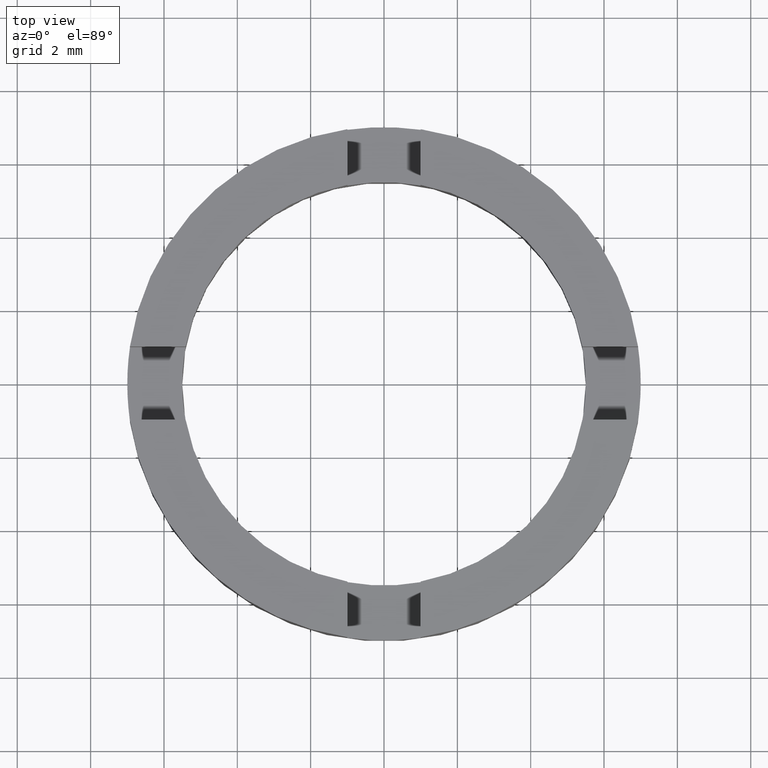
[diagram: clean part render]
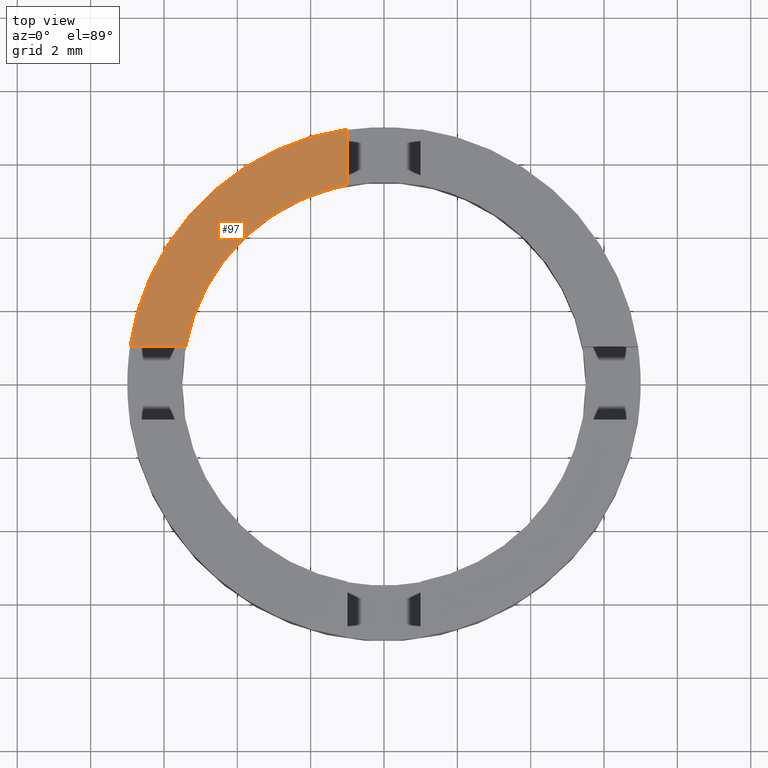
[diagram: same view with one face highlighted and labeled with its STEP entity id]
A machine part, top view. The second image highlights one B-rep face of the part: STEP entity #97.
In plain terms, the highlighted planar face has unit normal (0, 0, 1).
Its self-contained STEP definition (entity closure, byte-faithful):
#11 = VERTEX_POINT ( 'NONE', #151 ) ;
#25 = DIRECTION ( 'NONE',  ( 1.000000000000000000, 0.000000000000000000, 0.000000000000000000 ) ) ;
#62 = EDGE_CURVE ( 'NONE', #139, #11, #551, .T. ) ;
#63 = CARTESIAN_POINT ( 'NONE',  ( -0.9999999999999986677, 0.000000000000000000, 2.500000000000000000 ) ) ;
#66 = CARTESIAN_POINT ( 'NONE',  ( -5.408326913195980801, 1.000000000000019096, 2.500000000000000000 ) ) ;
#97 = ADVANCED_FACE ( 'NONE', ( #309 ), #398, .T. ) ;
#115 = ORIENTED_EDGE ( 'NONE', *, *, #62, .T. ) ;
#122 = ORIENTED_EDGE ( 'NONE', *, *, #600, .T. ) ;
#139 = VERTEX_POINT ( 'NONE', #575 ) ;
#151 = CARTESIAN_POINT ( 'NONE',  ( -6.928203230275506108, 1.000000000000024869, 2.500000000000000000 ) ) ;
#153 = AXIS2_PLACEMENT_3D ( 'NONE', #278, #200, #451 ) ;
#177 = DIRECTION ( 'NONE',  ( 1.000000000000000000, -3.748241796307028939E-15, 0.000000000000000000 ) ) ;
#200 = DIRECTION ( 'NONE',  ( 0.000000000000000000, 0.000000000000000000, 1.000000000000000000 ) ) ;
#234 = LINE ( 'NONE', #63, #236 ) ;
#236 = VECTOR ( 'NONE', #663, 1000.000000000000000 ) ;
#244 = AXIS2_PLACEMENT_3D ( 'NONE', #620, #629, #528 ) ;
#269 = DIRECTION ( 'NONE',  ( 0.000000000000000000, 0.000000000000000000, 1.000000000000000000 ) ) ;
#271 = ORIENTED_EDGE ( 'NONE', *, *, #484, .F. ) ;
#278 = CARTESIAN_POINT ( 'NONE',  ( 0.000000000000000000, 0.000000000000000000, 2.500000000000000000 ) ) ;
#282 = CARTESIAN_POINT ( 'NONE',  ( 3.748241796307024994E-15, 0.9999999999999988898, 2.500000000000000000 ) ) ;
#295 = EDGE_LOOP ( 'NONE', ( #271, #122, #115, #463 ) ) ;
#309 = FACE_OUTER_BOUND ( 'NONE', #295, .T. ) ;
#398 = PLANE ( 'NONE',  #244 ) ;
#434 = AXIS2_PLACEMENT_3D ( 'NONE', #522, #269, #25 ) ;
#447 = VERTEX_POINT ( 'NONE', #704 ) ;
#451 = DIRECTION ( 'NONE',  ( 1.000000000000000000, 0.000000000000000000, 0.000000000000000000 ) ) ;
#463 = ORIENTED_EDGE ( 'NONE', *, *, #624, .T. ) ;
#466 = VERTEX_POINT ( 'NONE', #66 ) ;
#484 = EDGE_CURVE ( 'NONE', #447, #466, #726, .T. ) ;
#522 = CARTESIAN_POINT ( 'NONE',  ( 0.000000000000000000, 0.000000000000000000, 2.500000000000000000 ) ) ;
#528 = DIRECTION ( 'NONE',  ( 1.000000000000000000, 0.000000000000000000, -0.000000000000000000 ) ) ;
#551 = CIRCLE ( 'NONE', #434, 7.000000000000000000 ) ;
#575 = CARTESIAN_POINT ( 'NONE',  ( -0.9999999999999986677, 6.928203230275509661, 2.500000000000000000 ) ) ;
#600 = EDGE_CURVE ( 'NONE', #447, #139, #234, .T. ) ;
#620 = CARTESIAN_POINT ( 'NONE',  ( 0.000000000000000000, 0.000000000000000000, 2.500000000000000000 ) ) ;
#624 = EDGE_CURVE ( 'NONE', #11, #466, #755, .T. ) ;
#629 = DIRECTION ( 'NONE',  ( 0.000000000000000000, 0.000000000000000000, 1.000000000000000000 ) ) ;
#663 = DIRECTION ( 'NONE',  ( 0.000000000000000000, 1.000000000000000000, -0.000000000000000000 ) ) ;
#704 = CARTESIAN_POINT ( 'NONE',  ( -0.9999999999999986677, 5.408326913195983465, 2.500000000000000000 ) ) ;
#726 = CIRCLE ( 'NONE', #153, 5.500000000000000000 ) ;
#755 = LINE ( 'NONE', #282, #765 ) ;
#765 = VECTOR ( 'NONE', #177, 1000.000000000000000 ) ;